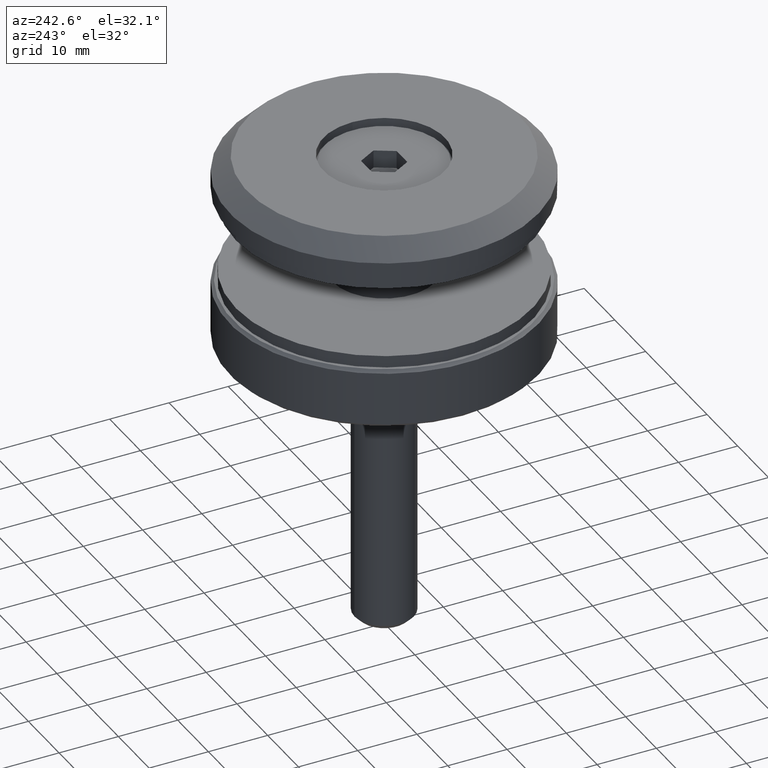
[diagram: clean part render]
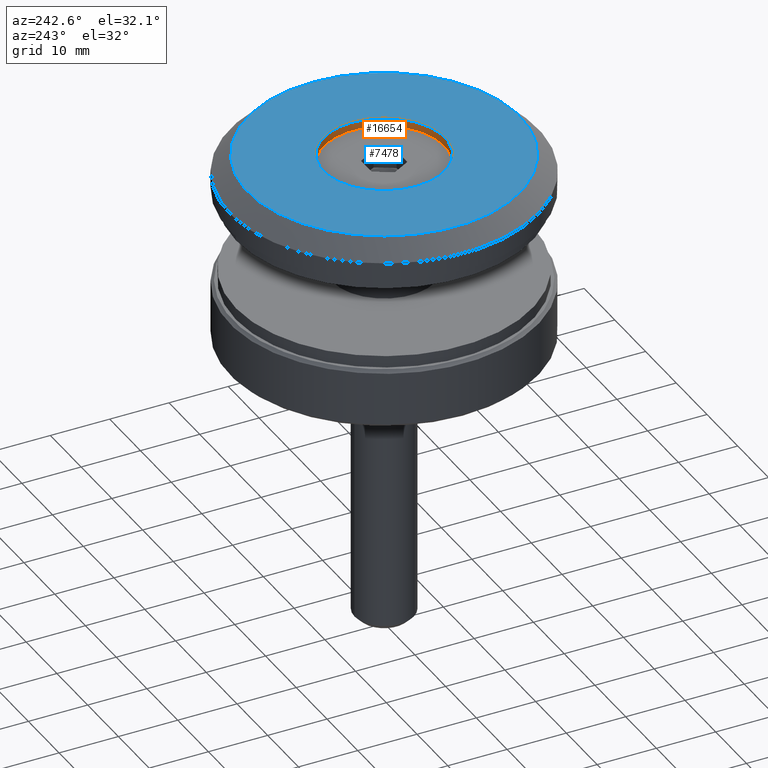
[diagram: same view with the hole feature highlighted: cylindrical wall and planar end face, labeled with their STEP entity ids]
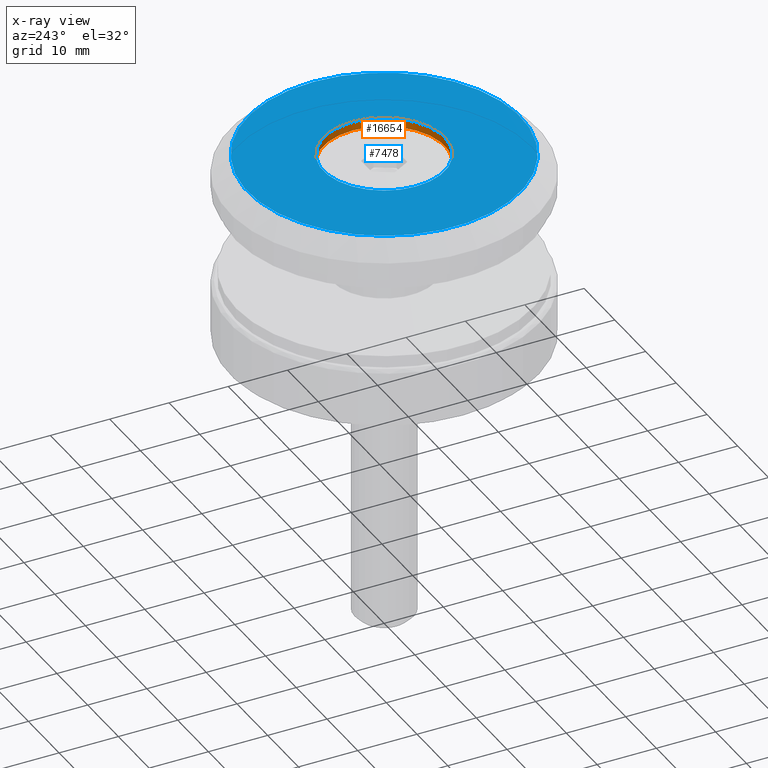
[diagram: x-ray of the same camera — body ghosted, the hole faces saturated]
A machine part, auxiliary view. The highlighted faces form one hole feature of diameter 20.5 mm: the cylindrical wall (entity #16654, orange) and its adjacent planar end face (entity #7478, blue) — they share a circular edge in the B-rep.
The next image is the same camera in x-ray (body ghosted, the hole faces saturated) — the bore reads through the body.
Wall:
#627 = DIRECTION ( 'NONE',  ( 1.000000000000000000, 0.0000000000000000000, 0.0000000000000000000 ) ) ;
#1210 = FACE_OUTER_BOUND ( 'NONE', #16661, .T. ) ;
#1323 = CIRCLE ( 'NONE', #12473, 10.25000000000000000 ) ;
#3132 = DIRECTION ( 'NONE',  ( -0.0000000000000000000, -0.0000000000000000000, 1.000000000000000000 ) ) ;
#3356 = CARTESIAN_POINT ( 'NONE',  ( 0.0000000000000000000, 0.0000000000000000000, 6.000000000000001800 ) ) ;
#4755 = AXIS2_PLACEMENT_3D ( 'NONE', #4788, #8713, #14054 ) ;
#4787 = DIRECTION ( 'NONE',  ( -0.0000000000000000000, -0.0000000000000000000, 1.000000000000000000 ) ) ;
#4788 = CARTESIAN_POINT ( 'NONE',  ( 0.0000000000000000000, 0.0000000000000000000, 4.500000000000000900 ) ) ;
#6109 = ORIENTED_EDGE ( 'NONE', *, *, #13661, .F. ) ;
#7230 = DIRECTION ( 'NONE',  ( 1.000000000000000000, 0.0000000000000000000, 0.0000000000000000000 ) ) ;
#7643 = EDGE_CURVE ( 'NONE', #10789, #10789, #1323, .T. ) ;
#8713 = DIRECTION ( 'NONE',  ( -0.0000000000000000000, -0.0000000000000000000, 1.000000000000000000 ) ) ;
#9753 = CYLINDRICAL_SURFACE ( 'NONE', #15679, 10.25000000000000000 ) ;
#10517 = CARTESIAN_POINT ( 'NONE',  ( 10.25000000000000000, 0.0000000000000000000, 4.500000000000000900 ) ) ;
#10789 = VERTEX_POINT ( 'NONE', #11646 ) ;
#10817 = ORIENTED_EDGE ( 'NONE', *, *, #7643, .T. ) ;
#11646 = CARTESIAN_POINT ( 'NONE',  ( 10.25000000000000000, 0.0000000000000000000, 6.000000000000001800 ) ) ;
#12473 = AXIS2_PLACEMENT_3D ( 'NONE', #3356, #4787, #7230 ) ;
#12828 = FACE_OUTER_BOUND ( 'NONE', #14761, .T. ) ;
#13661 = EDGE_CURVE ( 'NONE', #16694, #16694, #13860, .T. ) ;
#13860 = CIRCLE ( 'NONE', #4755, 10.25000000000000000 ) ;
#14054 = DIRECTION ( 'NONE',  ( 1.000000000000000000, 0.0000000000000000000, 0.0000000000000000000 ) ) ;
#14761 = EDGE_LOOP ( 'NONE', ( #10817 ) ) ;
#15679 = AXIS2_PLACEMENT_3D ( 'NONE', #16285, #3132, #627 ) ;
#16285 = CARTESIAN_POINT ( 'NONE',  ( 0.0000000000000000000, 0.0000000000000000000, 6.000000000000000000 ) ) ;
#16654 = ADVANCED_FACE ( 'NONE', ( #1210, #12828 ), #9753, .F. ) ;
#16661 = EDGE_LOOP ( 'NONE', ( #6109 ) ) ;
#16694 = VERTEX_POINT ( 'NONE', #10517 ) ;
End face:
#953 = EDGE_LOOP ( 'NONE', ( #3301 ) ) ;
#1323 = CIRCLE ( 'NONE', #12473, 10.25000000000000000 ) ;
#1449 = DIRECTION ( 'NONE',  ( 0.0000000000000000000, 0.0000000000000000000, 1.000000000000000000 ) ) ;
#1749 = FACE_OUTER_BOUND ( 'NONE', #2359, .T. ) ;
#2359 = EDGE_LOOP ( 'NONE', ( #12792 ) ) ;
#2595 = CARTESIAN_POINT ( 'NONE',  ( 22.99999999999998200, 0.0000000000000000000, 6.000000000000000000 ) ) ;
#3301 = ORIENTED_EDGE ( 'NONE', *, *, #7643, .F. ) ;
#3356 = CARTESIAN_POINT ( 'NONE',  ( 0.0000000000000000000, 0.0000000000000000000, 6.000000000000001800 ) ) ;
#4503 = CARTESIAN_POINT ( 'NONE',  ( 0.0000000000000000000, 0.0000000000000000000, 6.000000000000000000 ) ) ;
#4787 = DIRECTION ( 'NONE',  ( -0.0000000000000000000, -0.0000000000000000000, 1.000000000000000000 ) ) ;
#5213 = AXIS2_PLACEMENT_3D ( 'NONE', #4503, #16121, #13653 ) ;
#5310 = CARTESIAN_POINT ( 'NONE',  ( 0.0000000000000000000, 0.0000000000000000000, 6.000000000000000000 ) ) ;
#6850 = DIRECTION ( 'NONE',  ( 1.000000000000000000, 0.0000000000000000000, -0.0000000000000000000 ) ) ;
#7230 = DIRECTION ( 'NONE',  ( 1.000000000000000000, 0.0000000000000000000, 0.0000000000000000000 ) ) ;
#7478 = ADVANCED_FACE ( 'NONE', ( #9460, #1749 ), #8056, .T. ) ;
#7643 = EDGE_CURVE ( 'NONE', #10789, #10789, #1323, .T. ) ;
#8056 = PLANE ( 'NONE',  #14759 ) ;
#9460 = FACE_BOUND ( 'NONE', #953, .T. ) ;
#10789 = VERTEX_POINT ( 'NONE', #11646 ) ;
#11646 = CARTESIAN_POINT ( 'NONE',  ( 10.25000000000000000, 0.0000000000000000000, 6.000000000000001800 ) ) ;
#12473 = AXIS2_PLACEMENT_3D ( 'NONE', #3356, #4787, #7230 ) ;
#12792 = ORIENTED_EDGE ( 'NONE', *, *, #16634, .T. ) ;
#13035 = CIRCLE ( 'NONE', #5213, 22.99999999999998200 ) ;
#13653 = DIRECTION ( 'NONE',  ( 1.000000000000000000, 0.0000000000000000000, 0.0000000000000000000 ) ) ;
#14759 = AXIS2_PLACEMENT_3D ( 'NONE', #5310, #1449, #6850 ) ;
#15875 = VERTEX_POINT ( 'NONE', #2595 ) ;
#16121 = DIRECTION ( 'NONE',  ( 0.0000000000000000000, 0.0000000000000000000, 1.000000000000000000 ) ) ;
#16634 = EDGE_CURVE ( 'NONE', #15875, #15875, #13035, .T. ) ;